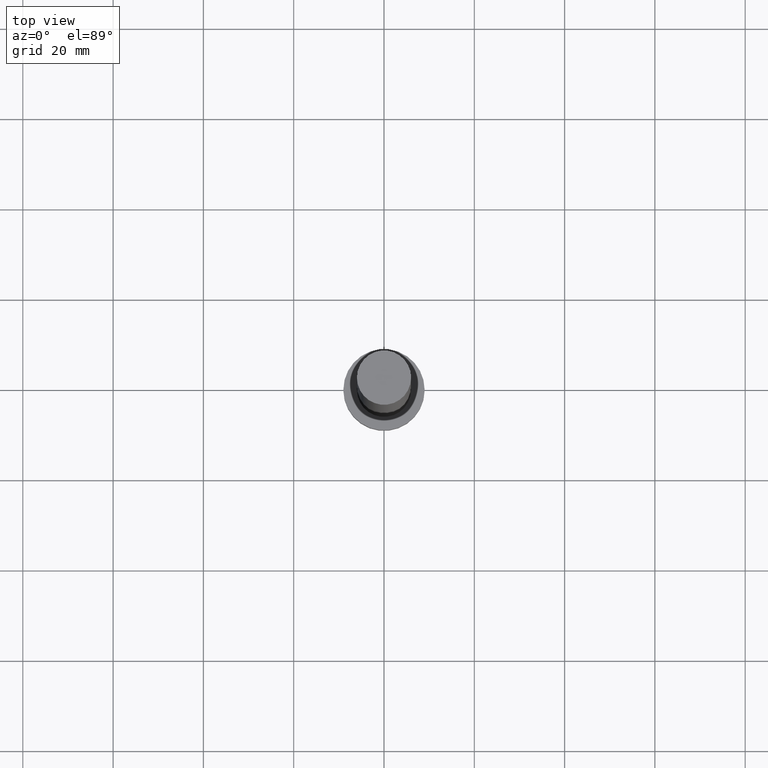
[diagram: clean part render]
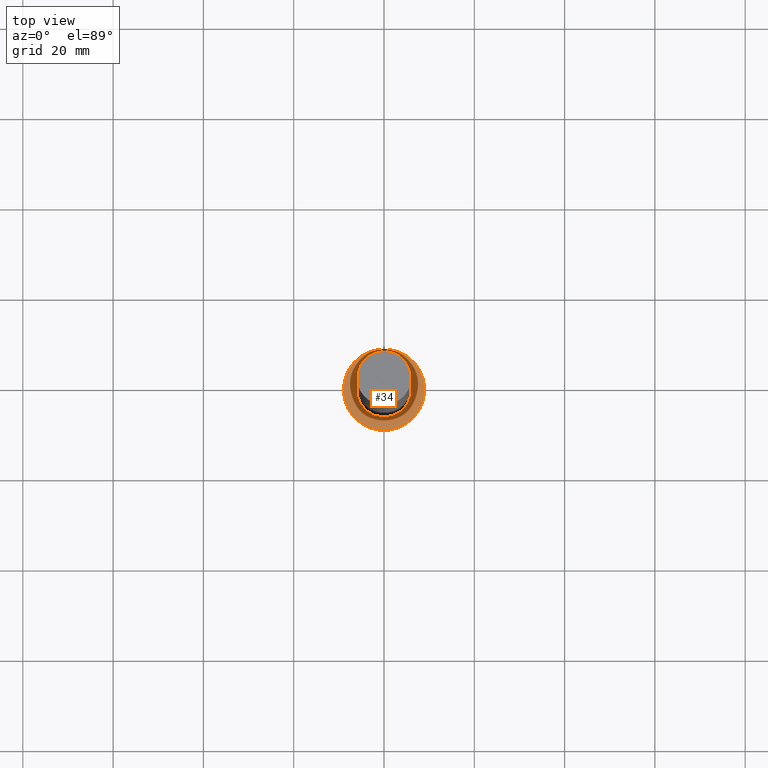
[diagram: same view with one face highlighted and labeled with its STEP entity id]
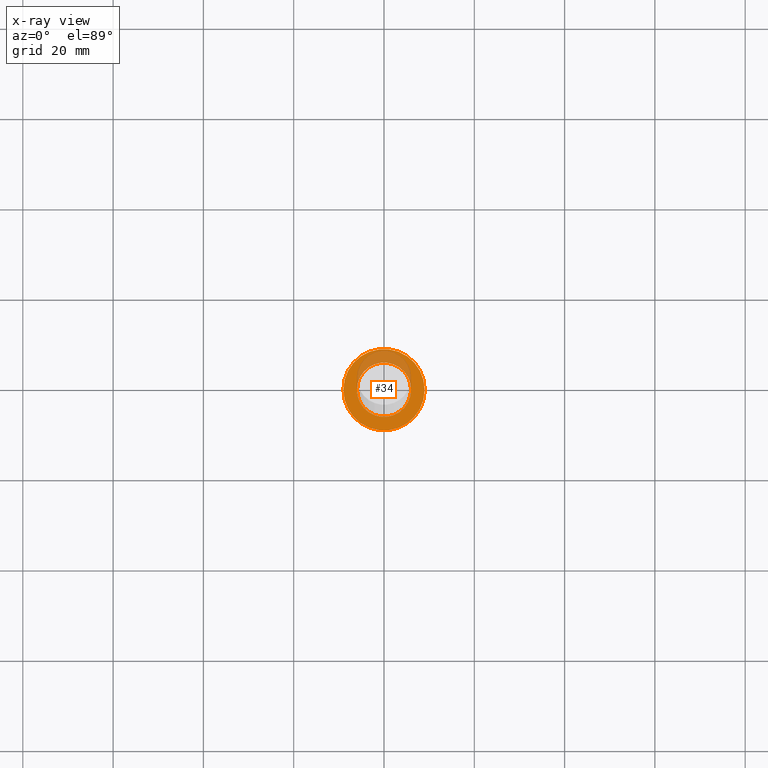
[diagram: x-ray of the same camera — body ghosted, the highlighted face saturated]
A machine part, top view. The second image highlights one B-rep face of the part: STEP entity #34.
The next image is the same camera in x-ray: the body ghosted, the highlighted face saturated — about 23% of this face is hidden behind the body in this view.
In plain terms, the highlighted planar face has unit normal (0, 0, 1).
Its self-contained STEP definition (entity closure, byte-faithful):
#2 = CARTESIAN_POINT ( 'NONE',  ( -6.000000000000000888, 0.000000000000000000, 7.000000000000000000 ) ) ;
#9 = EDGE_LOOP ( 'NONE', ( #72, #248 ) ) ;
#15 = CARTESIAN_POINT ( 'NONE',  ( -9.000000000000000000, 0.000000000000000000, 7.000000000000000000 ) ) ;
#16 = CARTESIAN_POINT ( 'NONE',  ( 0.000000000000000000, 0.000000000000000000, 7.000000000000000000 ) ) ;
#19 = DIRECTION ( 'NONE',  ( 1.000000000000000000, 0.000000000000000000, 0.000000000000000000 ) ) ;
#28 = EDGE_LOOP ( 'NONE', ( #133, #93 ) ) ;
#34 = ADVANCED_FACE ( 'NONE', ( #219, #238 ), #144, .T. ) ;
#38 = DIRECTION ( 'NONE',  ( 1.000000000000000000, 0.000000000000000000, -0.000000000000000000 ) ) ;
#39 = CIRCLE ( 'NONE', #165, 6.000000000000000888 ) ;
#42 = EDGE_CURVE ( 'NONE', #91, #186, #228, .T. ) ;
#51 = EDGE_CURVE ( 'NONE', #171, #55, #123, .T. ) ;
#55 = VERTEX_POINT ( 'NONE', #2 ) ;
#58 = DIRECTION ( 'NONE',  ( 0.000000000000000000, 0.000000000000000000, 1.000000000000000000 ) ) ;
#63 = EDGE_CURVE ( 'NONE', #186, #91, #181, .T. ) ;
#72 = ORIENTED_EDGE ( 'NONE', *, *, #214, .F. ) ;
#77 = DIRECTION ( 'NONE',  ( 1.000000000000000000, 0.000000000000000000, 0.000000000000000000 ) ) ;
#81 = DIRECTION ( 'NONE',  ( 1.000000000000000000, 0.000000000000000000, 0.000000000000000000 ) ) ;
#91 = VERTEX_POINT ( 'NONE', #15 ) ;
#93 = ORIENTED_EDGE ( 'NONE', *, *, #63, .T. ) ;
#104 = DIRECTION ( 'NONE',  ( 0.000000000000000000, 0.000000000000000000, 1.000000000000000000 ) ) ;
#107 = DIRECTION ( 'NONE',  ( 0.000000000000000000, 0.000000000000000000, 1.000000000000000000 ) ) ;
#111 = AXIS2_PLACEMENT_3D ( 'NONE', #175, #120, #81 ) ;
#120 = DIRECTION ( 'NONE',  ( 0.000000000000000000, 0.000000000000000000, 1.000000000000000000 ) ) ;
#123 = CIRCLE ( 'NONE', #111, 6.000000000000000888 ) ;
#125 = CARTESIAN_POINT ( 'NONE',  ( 6.000000000000000888, 7.347880794884120722E-16, 7.000000000000000000 ) ) ;
#133 = ORIENTED_EDGE ( 'NONE', *, *, #42, .T. ) ;
#144 = PLANE ( 'NONE',  #163 ) ;
#146 = CARTESIAN_POINT ( 'NONE',  ( 0.000000000000000000, 0.000000000000000000, 7.000000000000000000 ) ) ;
#158 = CARTESIAN_POINT ( 'NONE',  ( 0.000000000000000000, 0.000000000000000000, 7.000000000000000000 ) ) ;
#163 = AXIS2_PLACEMENT_3D ( 'NONE', #16, #104, #38 ) ;
#165 = AXIS2_PLACEMENT_3D ( 'NONE', #146, #107, #239 ) ;
#171 = VERTEX_POINT ( 'NONE', #125 ) ;
#175 = CARTESIAN_POINT ( 'NONE',  ( 0.000000000000000000, 0.000000000000000000, 7.000000000000000000 ) ) ;
#176 = CARTESIAN_POINT ( 'NONE',  ( 9.000000000000000000, 1.102182119232617714E-15, 7.000000000000000000 ) ) ;
#177 = DIRECTION ( 'NONE',  ( 0.000000000000000000, 0.000000000000000000, 1.000000000000000000 ) ) ;
#181 = CIRCLE ( 'NONE', #194, 9.000000000000000000 ) ;
#186 = VERTEX_POINT ( 'NONE', #176 ) ;
#194 = AXIS2_PLACEMENT_3D ( 'NONE', #158, #58, #77 ) ;
#196 = CARTESIAN_POINT ( 'NONE',  ( 0.000000000000000000, 0.000000000000000000, 7.000000000000000000 ) ) ;
#214 = EDGE_CURVE ( 'NONE', #55, #171, #39, .T. ) ;
#219 = FACE_BOUND ( 'NONE', #9, .T. ) ;
#222 = AXIS2_PLACEMENT_3D ( 'NONE', #196, #177, #19 ) ;
#228 = CIRCLE ( 'NONE', #222, 9.000000000000000000 ) ;
#238 = FACE_OUTER_BOUND ( 'NONE', #28, .T. ) ;
#239 = DIRECTION ( 'NONE',  ( 1.000000000000000000, 0.000000000000000000, 0.000000000000000000 ) ) ;
#248 = ORIENTED_EDGE ( 'NONE', *, *, #51, .F. ) ;